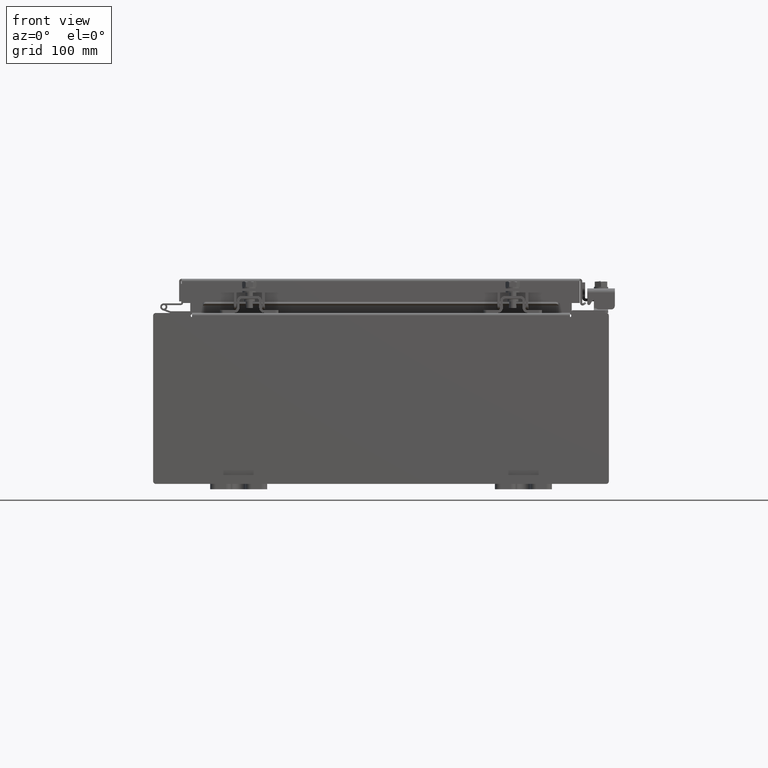
[diagram: clean part render]
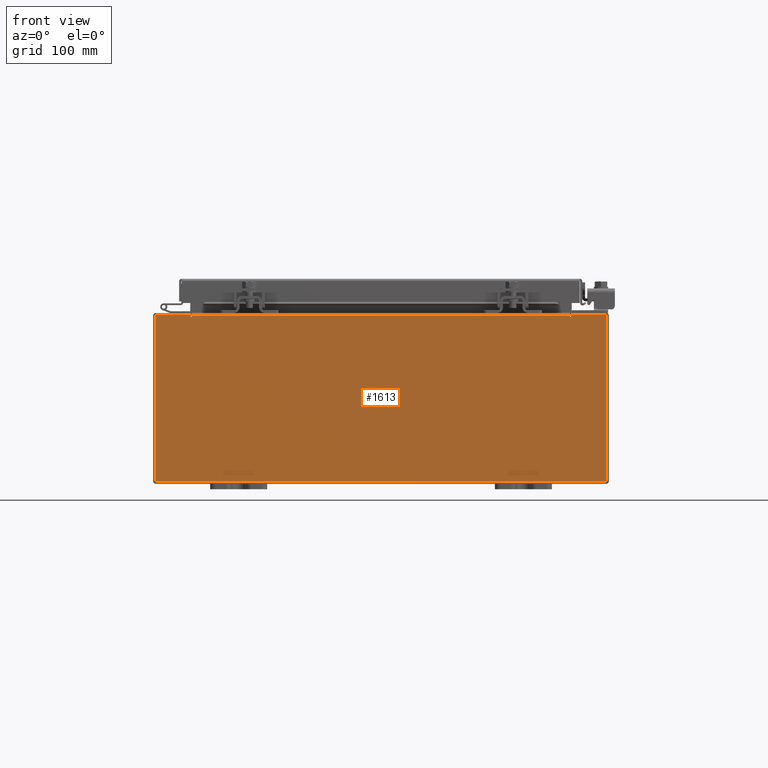
[diagram: same view with one face highlighted and labeled with its STEP entity id]
A machine part, front view. The second image highlights one B-rep face of the part: STEP entity #1613.
In plain terms, the highlighted planar face has unit normal (-0, 1, -0).
Its self-contained STEP definition (entity closure, byte-faithful):
#60 = DIRECTION ( 'NONE',  ( -1.000000000000000000, -0.0000000000000000000, -0.0000000000000000000 ) ) ;
#146 = EDGE_CURVE ( 'NONE', #4065, #13340, #3341, .T. ) ;
#655 = VECTOR ( 'NONE', #18241, 39.37007874015748100 ) ;
#705 = EDGE_CURVE ( 'NONE', #2982, #20482, #6460, .T. ) ;
#800 = DIRECTION ( 'NONE',  ( -0.0000000000000000000, 1.000000000000000000, -0.0000000000000000000 ) ) ;
#960 = CARTESIAN_POINT ( 'NONE',  ( -6.637200000000000900, -0.0000000000000000000, 0.0000000000000000000 ) ) ;
#1110 = CARTESIAN_POINT ( 'NONE',  ( 6.637199999999999100, 0.0000000000000000000, 0.0000000000000000000 ) ) ;
#1132 = ORIENTED_EDGE ( 'NONE', *, *, #24422, .T. ) ;
#1308 = LINE ( 'NONE', #12154, #655 ) ;
#1613 = ADVANCED_FACE ( 'NONE', ( #3317 ), #2305, .F. ) ;
#1876 = EDGE_LOOP ( 'NONE', ( #21541, #8478, #18852, #1132, #14858, #21469, #16242, #20920, #6768, #4724, #9440, #8970 ) ) ;
#2305 = PLANE ( 'NONE',  #2994 ) ;
#2402 = CARTESIAN_POINT ( 'NONE',  ( 6.674549999999999100, 0.0000000000000000000, 2.925300000000000500 ) ) ;
#2982 = VERTEX_POINT ( 'NONE', #23692 ) ;
#2994 = AXIS2_PLACEMENT_3D ( 'NONE', #10985, #5676, #19502 ) ;
#2999 = VECTOR ( 'NONE', #60, 39.37007874015748100 ) ;
#3317 = FACE_OUTER_BOUND ( 'NONE', #1876, .T. ) ;
#3341 = LINE ( 'NONE', #1110, #8680 ) ;
#3908 = VERTEX_POINT ( 'NONE', #23842 ) ;
#4007 = AXIS2_PLACEMENT_3D ( 'NONE', #21047, #8956, #23081 ) ;
#4065 = VERTEX_POINT ( 'NONE', #24276 ) ;
#4385 = DIRECTION ( 'NONE',  ( 1.000000000000000000, 0.0000000000000000000, 0.0000000000000000000 ) ) ;
#4554 = CIRCLE ( 'NONE', #4007, 0.01867500000000003900 ) ;
#4724 = ORIENTED_EDGE ( 'NONE', *, *, #23495, .T. ) ;
#4976 = LINE ( 'NONE', #960, #25823 ) ;
#5333 = CARTESIAN_POINT ( 'NONE',  ( -7.925300000000000000, 0.0000000000000000000, 2.925300000000000500 ) ) ;
#5676 = DIRECTION ( 'NONE',  ( 0.0000000000000000000, -1.000000000000000000, 0.0000000000000000000 ) ) ;
#5909 = EDGE_CURVE ( 'NONE', #11491, #19758, #16954, .T. ) ;
#6248 = VECTOR ( 'NONE', #20916, 39.37007874015748100 ) ;
#6460 = LINE ( 'NONE', #17564, #7097 ) ;
#6768 = ORIENTED_EDGE ( 'NONE', *, *, #705, .T. ) ;
#6805 = CARTESIAN_POINT ( 'NONE',  ( 6.674549999999936900, -0.0000000000000000000, -1.448568502570928700E-013 ) ) ;
#6812 = CARTESIAN_POINT ( 'NONE',  ( -6.674550000000000900, -0.0000000000000000000, 0.0000000000000000000 ) ) ;
#6894 = CARTESIAN_POINT ( 'NONE',  ( -6.637200000000000900, -1.707404996040164500E-016, 2.912300000000000600 ) ) ;
#7058 = LINE ( 'NONE', #6812, #23167 ) ;
#7097 = VECTOR ( 'NONE', #15953, 39.37007874015748100 ) ;
#7549 = LINE ( 'NONE', #8330, #23659 ) ;
#7977 = DIRECTION ( 'NONE',  ( 0.0000000000000000000, 0.0000000000000000000, 1.000000000000000000 ) ) ;
#8293 = EDGE_CURVE ( 'NONE', #3908, #9277, #1308, .T. ) ;
#8329 = LINE ( 'NONE', #24213, #2999 ) ;
#8330 = CARTESIAN_POINT ( 'NONE',  ( -7.925300000000000000, 0.0000000000000000000, 2.925300000000000500 ) ) ;
#8478 = ORIENTED_EDGE ( 'NONE', *, *, #12319, .F. ) ;
#8680 = VECTOR ( 'NONE', #7977, 39.37007874015748100 ) ;
#8956 = DIRECTION ( 'NONE',  ( -0.0000000000000000000, 1.000000000000000000, -0.0000000000000000000 ) ) ;
#8970 = ORIENTED_EDGE ( 'NONE', *, *, #20687, .T. ) ;
#9277 = VERTEX_POINT ( 'NONE', #5333 ) ;
#9337 = VECTOR ( 'NONE', #10923, 39.37007874015748100 ) ;
#9440 = ORIENTED_EDGE ( 'NONE', *, *, #8293, .T. ) ;
#9797 = CARTESIAN_POINT ( 'NONE',  ( -6.637200000000000900, -0.0000000000000000000, 2.874950000000000600 ) ) ;
#10923 = DIRECTION ( 'NONE',  ( 1.000000000000000000, 0.0000000000000000000, 0.0000000000000000000 ) ) ;
#10985 = CARTESIAN_POINT ( 'NONE',  ( 0.0000000000000000000, 0.0000000000000000000, 0.0000000000000000000 ) ) ;
#11491 = VERTEX_POINT ( 'NONE', #2402 ) ;
#11589 = CARTESIAN_POINT ( 'NONE',  ( -6.674550000000000900, 0.0000000000000000000, 2.925300000000000500 ) ) ;
#12154 = CARTESIAN_POINT ( 'NONE',  ( -7.925300000000000000, 0.0000000000000000000, 2.925300000000000500 ) ) ;
#12319 = EDGE_CURVE ( 'NONE', #25618, #15863, #4554, .T. ) ;
#12848 = CARTESIAN_POINT ( 'NONE',  ( 6.655874999999998200, 0.0000000000000000000, 2.874950000000000600 ) ) ;
#13108 = CARTESIAN_POINT ( 'NONE',  ( -6.637200000000000900, -1.707404996040164500E-016, 2.912300000000000600 ) ) ;
#13340 = VERTEX_POINT ( 'NONE', #16037 ) ;
#13471 = EDGE_CURVE ( 'NONE', #15863, #24897, #7058, .T. ) ;
#14714 = EDGE_CURVE ( 'NONE', #21900, #25618, #4976, .T. ) ;
#14858 = ORIENTED_EDGE ( 'NONE', *, *, #146, .F. ) ;
#14859 = DIRECTION ( 'NONE',  ( 0.0000000000000000000, 0.0000000000000000000, -1.000000000000000000 ) ) ;
#15632 = CIRCLE ( 'NONE', #20874, 0.01867500000000003900 ) ;
#15863 = VERTEX_POINT ( 'NONE', #23008 ) ;
#15953 = DIRECTION ( 'NONE',  ( 0.0000000000000000000, 0.0000000000000000000, -1.000000000000000000 ) ) ;
#16037 = CARTESIAN_POINT ( 'NONE',  ( 6.637199999999999100, 0.0000000000000000000, 2.912300000000000600 ) ) ;
#16242 = ORIENTED_EDGE ( 'NONE', *, *, #5909, .F. ) ;
#16954 = LINE ( 'NONE', #6805, #6248 ) ;
#17564 = CARTESIAN_POINT ( 'NONE',  ( 7.925300000000000000, 0.0000000000000000000, 2.925300000000000500 ) ) ;
#18241 = DIRECTION ( 'NONE',  ( -0.0000000000000000000, -0.0000000000000000000, 1.000000000000000000 ) ) ;
#18852 = ORIENTED_EDGE ( 'NONE', *, *, #14714, .F. ) ;
#19202 = DIRECTION ( 'NONE',  ( 1.000000000000000000, 0.0000000000000000000, 0.0000000000000000000 ) ) ;
#19502 = DIRECTION ( 'NONE',  ( 0.0000000000000000000, -0.0000000000000000000, -1.000000000000000000 ) ) ;
#19661 = VECTOR ( 'NONE', #19202, 39.37007874015748100 ) ;
#19758 = VERTEX_POINT ( 'NONE', #21253 ) ;
#20077 = LINE ( 'NONE', #25078, #9337 ) ;
#20482 = VERTEX_POINT ( 'NONE', #21764 ) ;
#20687 = EDGE_CURVE ( 'NONE', #9277, #24897, #7549, .T. ) ;
#20874 = AXIS2_PLACEMENT_3D ( 'NONE', #12848, #800, #14859 ) ;
#20916 = DIRECTION ( 'NONE',  ( -2.170286390200002500E-014, 0.0000000000000000000, -1.000000000000000000 ) ) ;
#20920 = ORIENTED_EDGE ( 'NONE', *, *, #21435, .T. ) ;
#20922 = DIRECTION ( 'NONE',  ( 0.0000000000000000000, 0.0000000000000000000, 1.000000000000000000 ) ) ;
#21047 = CARTESIAN_POINT ( 'NONE',  ( -6.655875000000000900, 0.0000000000000000000, 2.874950000000000600 ) ) ;
#21133 = DIRECTION ( 'NONE',  ( 0.0000000000000000000, 0.0000000000000000000, -1.000000000000000000 ) ) ;
#21253 = CARTESIAN_POINT ( 'NONE',  ( 6.674549999999999100, 0.0000000000000000000, 2.874950000000000600 ) ) ;
#21435 = EDGE_CURVE ( 'NONE', #11491, #2982, #20077, .T. ) ;
#21469 = ORIENTED_EDGE ( 'NONE', *, *, #22441, .F. ) ;
#21541 = ORIENTED_EDGE ( 'NONE', *, *, #13471, .F. ) ;
#21764 = CARTESIAN_POINT ( 'NONE',  ( 7.925300000000000000, 0.0000000000000000000, -2.925299999999999600 ) ) ;
#21900 = VERTEX_POINT ( 'NONE', #6894 ) ;
#22441 = EDGE_CURVE ( 'NONE', #19758, #4065, #15632, .T. ) ;
#23008 = CARTESIAN_POINT ( 'NONE',  ( -6.674550000000000900, 0.0000000000000000000, 2.874950000000000600 ) ) ;
#23081 = DIRECTION ( 'NONE',  ( 0.0000000000000000000, 0.0000000000000000000, -1.000000000000000000 ) ) ;
#23167 = VECTOR ( 'NONE', #20922, 39.37007874015748100 ) ;
#23495 = EDGE_CURVE ( 'NONE', #20482, #3908, #8329, .T. ) ;
#23659 = VECTOR ( 'NONE', #4385, 39.37007874015748100 ) ;
#23692 = CARTESIAN_POINT ( 'NONE',  ( 7.925300000000000000, 0.0000000000000000000, 2.925300000000000500 ) ) ;
#23842 = CARTESIAN_POINT ( 'NONE',  ( -7.925300000000000000, 0.0000000000000000000, -2.925299999999999600 ) ) ;
#24213 = CARTESIAN_POINT ( 'NONE',  ( -7.925300000000000000, 0.0000000000000000000, -2.925299999999999600 ) ) ;
#24276 = CARTESIAN_POINT ( 'NONE',  ( 6.637199999999997300, 0.0000000000000000000, 2.874950000000000600 ) ) ;
#24422 = EDGE_CURVE ( 'NONE', #21900, #13340, #25030, .T. ) ;
#24897 = VERTEX_POINT ( 'NONE', #11589 ) ;
#25030 = LINE ( 'NONE', #13108, #19661 ) ;
#25078 = CARTESIAN_POINT ( 'NONE',  ( -7.925300000000000000, 0.0000000000000000000, 2.925300000000000500 ) ) ;
#25618 = VERTEX_POINT ( 'NONE', #9797 ) ;
#25823 = VECTOR ( 'NONE', #21133, 39.37007874015748100 ) ;